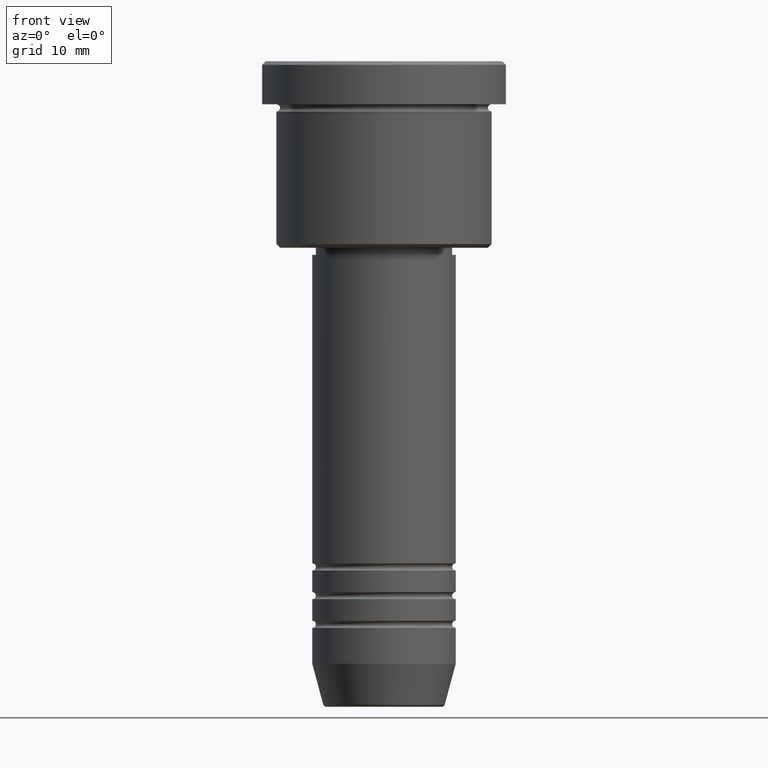
[diagram: clean part render]
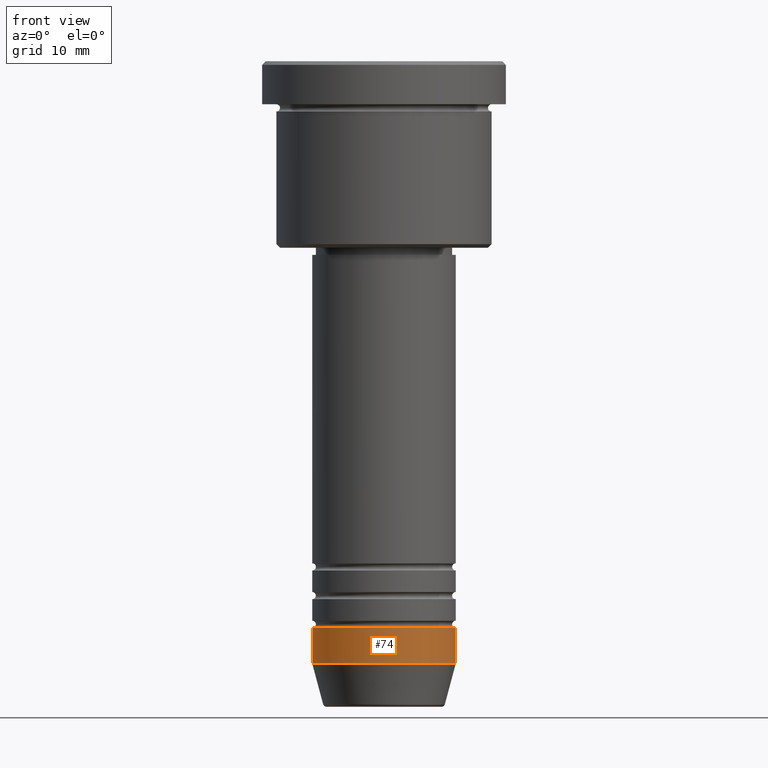
[diagram: same view with one face highlighted and labeled with its STEP entity id]
A machine part, front view. The second image highlights one B-rep face of the part: STEP entity #74.
In plain terms, the highlighted cylindrical surface (partial cylindrical patch) has radius 10 mm, axis along (-0, -0, 1).
Its self-contained STEP definition (entity closure, byte-faithful):
#10 = ORIENTED_EDGE ( 'NONE', *, *, #376, .F. ) ;
#37 = DIRECTION ( 'NONE',  ( -0.000000000000000000, -0.000000000000000000, 1.000000000000000000 ) ) ;
#74 = ADVANCED_FACE ( 'NONE', ( #691 ), #703, .T. ) ;
#75 = VERTEX_POINT ( 'NONE', #1157 ) ;
#80 = CIRCLE ( 'NONE', #592, 10.00000000000000178 ) ;
#95 = EDGE_CURVE ( 'NONE', #75, #768, #448, .T. ) ;
#96 = AXIS2_PLACEMENT_3D ( 'NONE', #946, #1054, #665 ) ;
#183 = ORIENTED_EDGE ( 'NONE', *, *, #1010, .T. ) ;
#205 = LINE ( 'NONE', #562, #588 ) ;
#298 = CARTESIAN_POINT ( 'NONE',  ( 10.00000000000000000, 0.000000000000000000, -78.99999999999998579 ) ) ;
#355 = DIRECTION ( 'NONE',  ( 1.000000000000000000, 0.000000000000000000, 0.000000000000000000 ) ) ;
#376 = EDGE_CURVE ( 'NONE', #768, #419, #1014, .T. ) ;
#419 = VERTEX_POINT ( 'NONE', #298 ) ;
#423 = CARTESIAN_POINT ( 'NONE',  ( -10.00000000000000178, 1.224646799147353454E-15, 0.000000000000000000 ) ) ;
#425 = EDGE_LOOP ( 'NONE', ( #694, #183, #525, #10 ) ) ;
#430 = VECTOR ( 'NONE', #800, 1000.000000000000000 ) ;
#448 = LINE ( 'NONE', #423, #430 ) ;
#457 = AXIS2_PLACEMENT_3D ( 'NONE', #1165, #779, #355 ) ;
#511 = CARTESIAN_POINT ( 'NONE',  ( 0.000000000000000000, 0.000000000000000000, -83.99999999999998579 ) ) ;
#525 = ORIENTED_EDGE ( 'NONE', *, *, #651, .T. ) ;
#562 = CARTESIAN_POINT ( 'NONE',  ( 10.00000000000000178, 0.000000000000000000, 0.000000000000000000 ) ) ;
#584 = CARTESIAN_POINT ( 'NONE',  ( 10.00000000000000178, 0.000000000000000000, -83.99999999999998579 ) ) ;
#588 = VECTOR ( 'NONE', #882, 1000.000000000000000 ) ;
#592 = AXIS2_PLACEMENT_3D ( 'NONE', #511, #37, #1056 ) ;
#625 = CARTESIAN_POINT ( 'NONE',  ( -10.00000000000000000, 1.224646799147353256E-15, -78.99999999999998579 ) ) ;
#651 = EDGE_CURVE ( 'NONE', #1050, #419, #205, .T. ) ;
#665 = DIRECTION ( 'NONE',  ( 1.000000000000000000, 0.000000000000000000, 0.000000000000000000 ) ) ;
#691 = FACE_OUTER_BOUND ( 'NONE', #425, .T. ) ;
#694 = ORIENTED_EDGE ( 'NONE', *, *, #95, .F. ) ;
#703 = CYLINDRICAL_SURFACE ( 'NONE', #457, 10.00000000000000178 ) ;
#768 = VERTEX_POINT ( 'NONE', #625 ) ;
#779 = DIRECTION ( 'NONE',  ( -0.000000000000000000, -0.000000000000000000, 1.000000000000000000 ) ) ;
#800 = DIRECTION ( 'NONE',  ( -0.000000000000000000, -0.000000000000000000, 1.000000000000000000 ) ) ;
#882 = DIRECTION ( 'NONE',  ( -0.000000000000000000, -0.000000000000000000, 1.000000000000000000 ) ) ;
#946 = CARTESIAN_POINT ( 'NONE',  ( 0.000000000000000000, 0.000000000000000000, -78.99999999999998579 ) ) ;
#1010 = EDGE_CURVE ( 'NONE', #75, #1050, #80, .T. ) ;
#1014 = CIRCLE ( 'NONE', #96, 10.00000000000000000 ) ;
#1050 = VERTEX_POINT ( 'NONE', #584 ) ;
#1054 = DIRECTION ( 'NONE',  ( -0.000000000000000000, -0.000000000000000000, 1.000000000000000000 ) ) ;
#1056 = DIRECTION ( 'NONE',  ( 1.000000000000000000, 0.000000000000000000, 0.000000000000000000 ) ) ;
#1157 = CARTESIAN_POINT ( 'NONE',  ( -10.00000000000000178, 1.224646799147353454E-15, -83.99999999999998579 ) ) ;
#1165 = CARTESIAN_POINT ( 'NONE',  ( 0.000000000000000000, 0.000000000000000000, 0.000000000000000000 ) ) ;